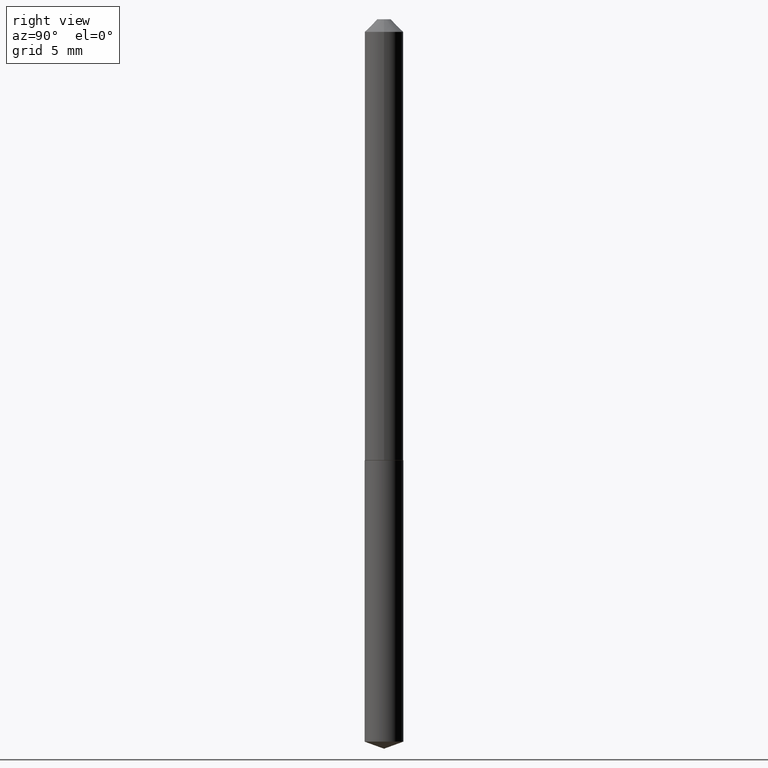
[diagram: clean part render]
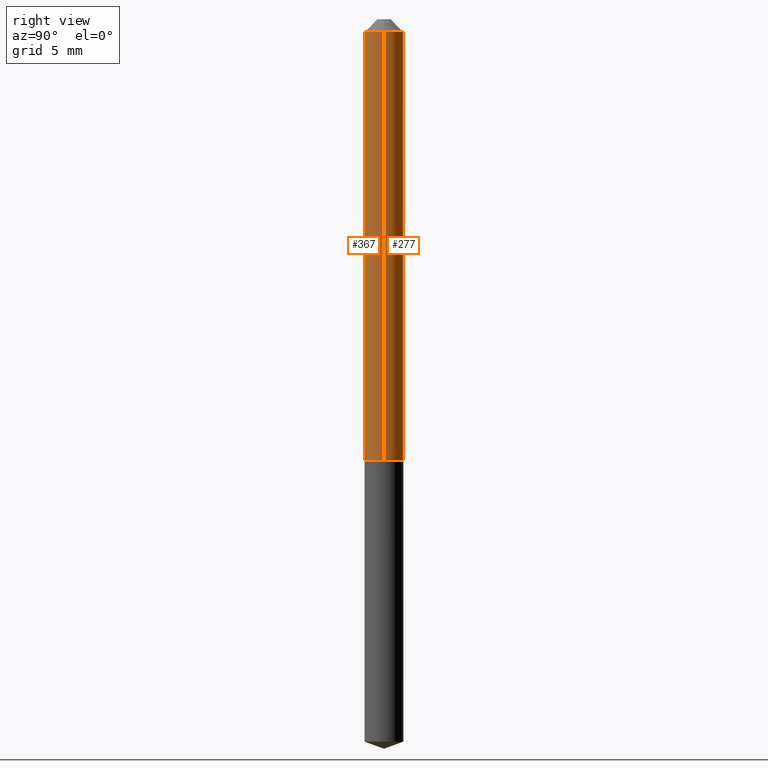
[diagram: same view with one multi-face feature highlighted, each face labeled with its STEP entity id]
A machine part, right view. The highlighted faces form ONE feature: a constant-radius fillet chain: 2 tangent blend faces with common blend radius 1.2192 mm. The faces share edges in the B-rep.
Their STEP definitions:
[1] entity #367 (Cylinder):
#4 = EDGE_LOOP ( 'NONE', ( #155, #368, #305, #64 ) ) ;
#6 = VERTEX_POINT ( 'NONE', #101 ) ;
#8 = EDGE_CURVE ( 'NONE', #278, #100, #372, .T. ) ;
#9 = AXIS2_PLACEMENT_3D ( 'NONE', #171, #144, #202 ) ;
#44 = DIRECTION ( 'NONE',  ( -2.445468806185136877E-29, 3.491481338843145188E-15, 1.000000000000000000 ) ) ;
#46 = CARTESIAN_POINT ( 'NONE',  ( -0.04800000000000013284, -3.483857293537816994E-15, -1.095500000000000140 ) ) ;
#64 = ORIENTED_EDGE ( 'NONE', *, *, #177, .F. ) ;
#70 = CARTESIAN_POINT ( 'NONE',  ( 0.04800000000000007733, -3.351822085289413070E-16, 2.340564852382052838E-30 ) ) ;
#73 = CYLINDRICAL_SURFACE ( 'NONE', #9, 0.04800000000000007733 ) ;
#77 = AXIS2_PLACEMENT_3D ( 'NONE', #93, #178, #301 ) ;
#80 = LINE ( 'NONE', #70, #97 ) ;
#93 = CARTESIAN_POINT ( 'NONE',  ( 7.642090019328601786E-31, -1.091087918388490144E-16, -0.03125000000000020123 ) ) ;
#97 = VECTOR ( 'NONE', #296, 39.37007874015748143 ) ;
#100 = VERTEX_POINT ( 'NONE', #352 ) ;
#101 = CARTESIAN_POINT ( 'NONE',  ( 0.04800000000000013284, -4.160100015231607876E-15, -1.095500000000000140 ) ) ;
#104 = CARTESIAN_POINT ( 'NONE',  ( -0.04800000000000007733, 3.410605131648486387E-16, -2.361088843322358304E-30 ) ) ;
#110 = FACE_OUTER_BOUND ( 'NONE', #4, .T. ) ;
#127 = VECTOR ( 'NONE', #44, 39.37007874015748143 ) ;
#128 = CIRCLE ( 'NONE', #77, 0.04800000000000000794 ) ;
#144 = DIRECTION ( 'NONE',  ( -2.445468806185136597E-29, 3.491481338843145583E-15, 1.000000000000000000 ) ) ;
#155 = ORIENTED_EDGE ( 'NONE', *, *, #8, .F. ) ;
#171 = CARTESIAN_POINT ( 'NONE',  ( 0.000000000000000000, 0.000000000000000000, 0.000000000000000000 ) ) ;
#177 = EDGE_CURVE ( 'NONE', #100, #309, #128, .T. ) ;
#178 = DIRECTION ( 'NONE',  ( -2.445468806185136597E-29, 3.491481338843145583E-15, 1.000000000000000000 ) ) ;
#189 = CIRCLE ( 'NONE', #371, 0.04800000000000013284 ) ;
#202 = DIRECTION ( 'NONE',  ( 1.000000000000000000, -6.982962677686265922E-15, 4.876176775795935793E-29 ) ) ;
#227 = DIRECTION ( 'NONE',  ( 1.000000000000000000, -6.982962677686262766E-15, 0.000000000000000000 ) ) ;
#237 = CARTESIAN_POINT ( 'NONE',  ( 2.679011077175817397E-29, -3.824917806702666569E-15, -1.095500000000000140 ) ) ;
#239 = DIRECTION ( 'NONE',  ( -2.445468806185136597E-29, 3.491481338843145583E-15, 1.000000000000000000 ) ) ;
#246 = EDGE_CURVE ( 'NONE', #278, #6, #189, .T. ) ;
#259 = EDGE_CURVE ( 'NONE', #6, #309, #80, .T. ) ;
#278 = VERTEX_POINT ( 'NONE', #46 ) ;
#296 = DIRECTION ( 'NONE',  ( -2.445468806185136877E-29, 3.491481338843145188E-15, 1.000000000000000000 ) ) ;
#301 = DIRECTION ( 'NONE',  ( 1.000000000000000000, -6.982962677686266711E-15, 0.000000000000000000 ) ) ;
#305 = ORIENTED_EDGE ( 'NONE', *, *, #259, .T. ) ;
#309 = VERTEX_POINT ( 'NONE', #325 ) ;
#325 = CARTESIAN_POINT ( 'NONE',  ( 0.04800000000000000794, -4.442910003677899146E-16, -0.03125000000000020123 ) ) ;
#352 = CARTESIAN_POINT ( 'NONE',  ( -0.04800000000000000794, -1.625952786105907865E-15, -0.03125000000000020123 ) ) ;
#367 = ADVANCED_FACE ( 'NONE', ( #110 ), #73, .T. ) ;
#368 = ORIENTED_EDGE ( 'NONE', *, *, #246, .T. ) ;
#371 = AXIS2_PLACEMENT_3D ( 'NONE', #237, #239, #227 ) ;
#372 = LINE ( 'NONE', #104, #127 ) ;
[2] entity #277 (Cylinder):
#6 = VERTEX_POINT ( 'NONE', #101 ) ;
#8 = EDGE_CURVE ( 'NONE', #278, #100, #372, .T. ) ;
#20 = EDGE_CURVE ( 'NONE', #309, #100, #62, .T. ) ;
#44 = DIRECTION ( 'NONE',  ( -2.445468806185136877E-29, 3.491481338843145188E-15, 1.000000000000000000 ) ) ;
#46 = CARTESIAN_POINT ( 'NONE',  ( -0.04800000000000013284, -3.483857293537816994E-15, -1.095500000000000140 ) ) ;
#51 = CARTESIAN_POINT ( 'NONE',  ( 0.000000000000000000, 0.000000000000000000, 0.000000000000000000 ) ) ;
#62 = CIRCLE ( 'NONE', #158, 0.04800000000000000794 ) ;
#70 = CARTESIAN_POINT ( 'NONE',  ( 0.04800000000000007733, -3.351822085289413070E-16, 2.340564852382052838E-30 ) ) ;
#74 = CARTESIAN_POINT ( 'NONE',  ( 2.679011077175817397E-29, -3.824917806702666569E-15, -1.095500000000000140 ) ) ;
#80 = LINE ( 'NONE', #70, #97 ) ;
#83 = CYLINDRICAL_SURFACE ( 'NONE', #334, 0.04800000000000007733 ) ;
#95 = ORIENTED_EDGE ( 'NONE', *, *, #8, .T. ) ;
#97 = VECTOR ( 'NONE', #296, 39.37007874015748143 ) ;
#100 = VERTEX_POINT ( 'NONE', #352 ) ;
#101 = CARTESIAN_POINT ( 'NONE',  ( 0.04800000000000013284, -4.160100015231607876E-15, -1.095500000000000140 ) ) ;
#104 = CARTESIAN_POINT ( 'NONE',  ( -0.04800000000000007733, 3.410605131648486387E-16, -2.361088843322358304E-30 ) ) ;
#127 = VECTOR ( 'NONE', #44, 39.37007874015748143 ) ;
#139 = DIRECTION ( 'NONE',  ( -2.445468806185136597E-29, 3.491481338843145583E-15, 1.000000000000000000 ) ) ;
#154 = EDGE_CURVE ( 'NONE', #6, #278, #329, .T. ) ;
#158 = AXIS2_PLACEMENT_3D ( 'NONE', #251, #255, #224 ) ;
#224 = DIRECTION ( 'NONE',  ( 1.000000000000000000, -6.982962677686266711E-15, 0.000000000000000000 ) ) ;
#240 = DIRECTION ( 'NONE',  ( -2.445468806185136597E-29, 3.491481338843145583E-15, 1.000000000000000000 ) ) ;
#244 = ORIENTED_EDGE ( 'NONE', *, *, #259, .F. ) ;
#251 = CARTESIAN_POINT ( 'NONE',  ( 7.642090019328601786E-31, -1.091087918388490144E-16, -0.03125000000000020123 ) ) ;
#255 = DIRECTION ( 'NONE',  ( -2.445468806185136597E-29, 3.491481338843145583E-15, 1.000000000000000000 ) ) ;
#259 = EDGE_CURVE ( 'NONE', #6, #309, #80, .T. ) ;
#272 = DIRECTION ( 'NONE',  ( 1.000000000000000000, -6.982962677686265922E-15, 4.876176775795935793E-29 ) ) ;
#277 = ADVANCED_FACE ( 'NONE', ( #292 ), #83, .T. ) ;
#278 = VERTEX_POINT ( 'NONE', #46 ) ;
#286 = ORIENTED_EDGE ( 'NONE', *, *, #20, .F. ) ;
#292 = FACE_OUTER_BOUND ( 'NONE', #314, .T. ) ;
#296 = DIRECTION ( 'NONE',  ( -2.445468806185136877E-29, 3.491481338843145188E-15, 1.000000000000000000 ) ) ;
#309 = VERTEX_POINT ( 'NONE', #325 ) ;
#314 = EDGE_LOOP ( 'NONE', ( #317, #95, #286, #244 ) ) ;
#317 = ORIENTED_EDGE ( 'NONE', *, *, #154, .T. ) ;
#325 = CARTESIAN_POINT ( 'NONE',  ( 0.04800000000000000794, -4.442910003677899146E-16, -0.03125000000000020123 ) ) ;
#329 = CIRCLE ( 'NONE', #361, 0.04800000000000013284 ) ;
#334 = AXIS2_PLACEMENT_3D ( 'NONE', #51, #139, #272 ) ;
#352 = CARTESIAN_POINT ( 'NONE',  ( -0.04800000000000000794, -1.625952786105907865E-15, -0.03125000000000020123 ) ) ;
#359 = DIRECTION ( 'NONE',  ( 1.000000000000000000, -6.982962677686262766E-15, 0.000000000000000000 ) ) ;
#361 = AXIS2_PLACEMENT_3D ( 'NONE', #74, #240, #359 ) ;
#372 = LINE ( 'NONE', #104, #127 ) ;